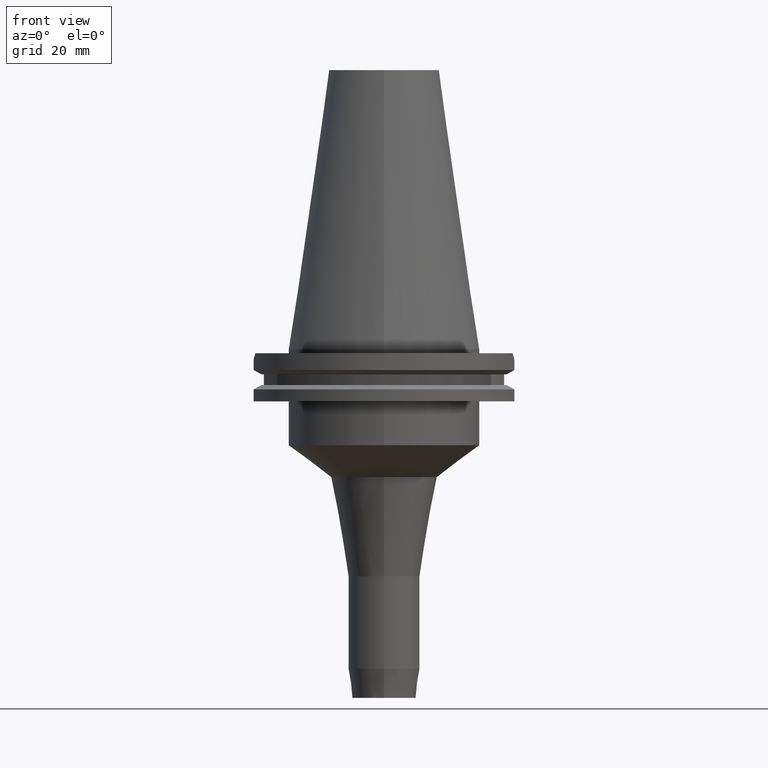
[diagram: clean part render]
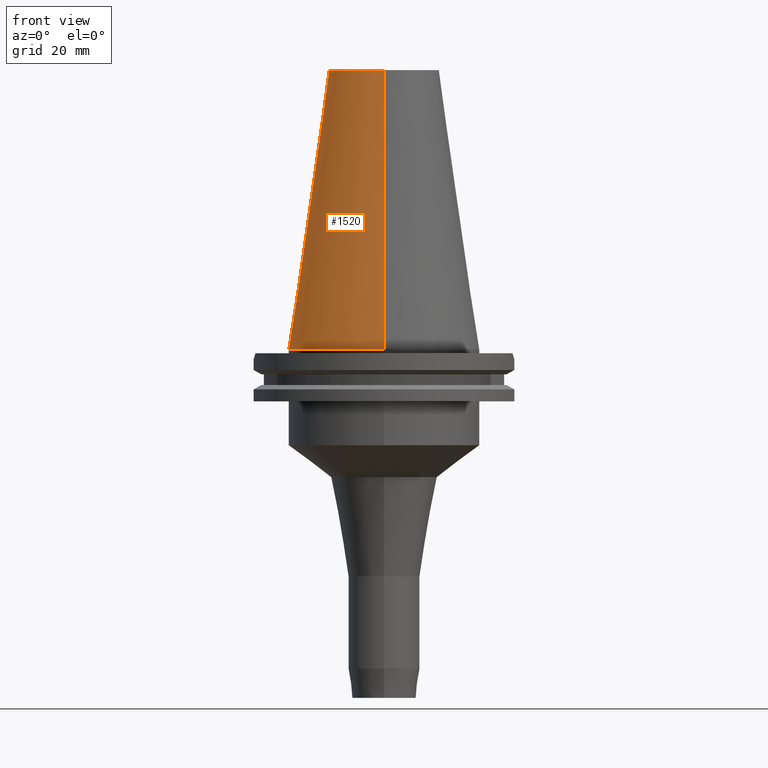
[diagram: same view with one face highlighted and labeled with its STEP entity id]
A machine part, front view. The second image highlights one B-rep face of the part: STEP entity #1520.
In plain terms, the highlighted conical surface has half-angle 8.297 deg.
Its self-contained STEP definition (entity closure, byte-faithful):
#17=DIRECTION('',(0.E0,-1.443069799457E-1,-9.895329683942E-1));
#18=VECTOR('',#17,1.026746993229E2);
#19=CARTESIAN_POINT('',(0.E0,-2.010832422387E1,1.016E2));
#20=LINE('',#19,#18);
#25=CARTESIAN_POINT('',(0.E0,0.E0,8.242295734817E-13));
#26=DIRECTION('',(0.E0,0.E0,-1.E0));
#27=DIRECTION('',(0.E0,-1.E0,0.E0));
#28=AXIS2_PLACEMENT_3D('',#25,#26,#27);
#33=DIRECTION('',(0.E0,1.443069799457E-1,-9.895329683942E-1));
#34=VECTOR('',#33,1.026746993229E2);
#35=CARTESIAN_POINT('',(0.E0,2.010832422387E1,1.016E2));
#36=LINE('',#35,#34);
#1256=CARTESIAN_POINT('',(0.E0,0.E0,1.016E2));
#1257=DIRECTION('',(0.E0,0.E0,-1.E0));
#1258=DIRECTION('',(0.E0,-1.E0,0.E0));
#1259=AXIS2_PLACEMENT_3D('',#1256,#1257,#1258);
#1288=CARTESIAN_POINT('',(0.E0,2.010832422387E1,1.016E2));
#1289=CARTESIAN_POINT('',(0.E0,3.4925E1,5.542233338929E-13));
#1290=VERTEX_POINT('',#1288);
#1291=VERTEX_POINT('',#1289);
#1292=CARTESIAN_POINT('',(0.E0,-2.010832422388E1,1.016E2));
#1293=VERTEX_POINT('',#1292);
#1294=CARTESIAN_POINT('',(0.E0,-3.4925E1,5.542233338929E-13));
#1295=VERTEX_POINT('',#1294);
#1505=CARTESIAN_POINT('',(0.E0,0.E0,5.08E1));
#1506=DIRECTION('',(0.E0,0.E0,-1.E0));
#1507=DIRECTION('',(0.E0,-1.E0,0.E0));
#1508=AXIS2_PLACEMENT_3D('',#1505,#1506,#1507);
#1509=CONICAL_SURFACE('',#1508,2.751666211194E1,8.29715E0);
#1511=ORIENTED_EDGE('',*,*,#1510,.F.);
#1513=ORIENTED_EDGE('',*,*,#1512,.F.);
#1515=ORIENTED_EDGE('',*,*,#1514,.T.);
#1517=ORIENTED_EDGE('',*,*,#1516,.T.);
#1518=EDGE_LOOP('',(#1511,#1513,#1515,#1517));
#1519=FACE_OUTER_BOUND('',#1518,.F.);
#29=CIRCLE('',#28,3.4925E1);
#1260=CIRCLE('',#1259,2.010832422388E1);
#1510=EDGE_CURVE('',#1290,#1291,#36,.T.);
#1512=EDGE_CURVE('',#1293,#1290,#1260,.T.);
#1514=EDGE_CURVE('',#1293,#1295,#20,.T.);
#1516=EDGE_CURVE('',#1295,#1291,#29,.T.);
#1520=ADVANCED_FACE('',(#1519),#1509,.T.);